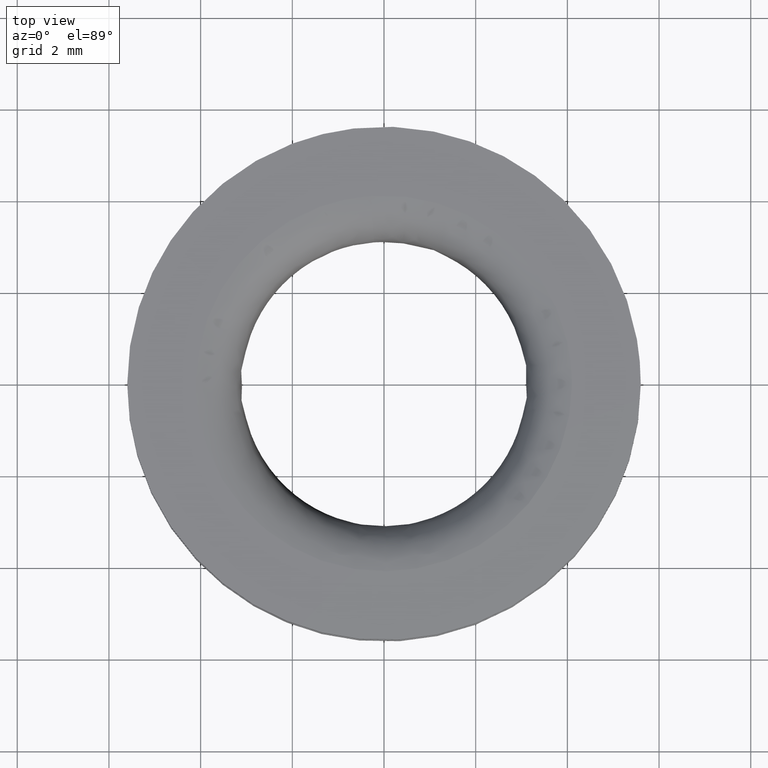
[diagram: clean part render]
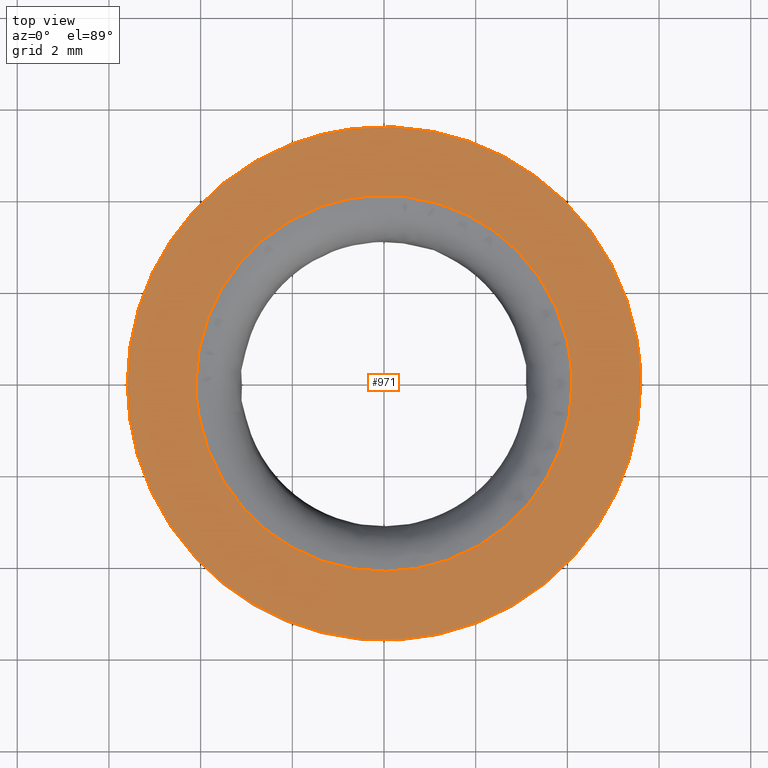
[diagram: same view with one face highlighted and labeled with its STEP entity id]
A machine part, top view. The second image highlights one B-rep face of the part: STEP entity #971.
In plain terms, the highlighted face is a freeform B-spline surface patch.
Its self-contained STEP definition (entity closure, byte-faithful):
#85=CARTESIAN_POINT('',(-0.660988216627040,5.560853763359345,2.0));
#86=VERTEX_POINT('',#85);
#92=CARTESIAN_POINT('',(5.600000000000000,0.0,2.0));
#93=VERTEX_POINT('',#92);
#94=CARTESIAN_POINT('',(-0.660988216627040,5.560853763359345,2.000000000000000));
#95=CARTESIAN_POINT('',(-0.331653302838156,5.600000000000000,2.000000000000000));
#96=CARTESIAN_POINT('',(0.0,5.600000000000000,2.0));
#97=CARTESIAN_POINT('',(5.599999999999999,5.599999999999999,2.0));
#98=CARTESIAN_POINT('',(5.600000000000000,0.0,2.0));
#106=(BOUNDED_CURVE()B_SPLINE_CURVE(2,(#94,#95,#96,#97,#98),.UNSPECIFIED.,.F.,.U.)B_SPLINE_CURVE_WITH_KNOTS((3,2,3),(0.229562579808786,0.250000000000000,0.500000000000000),.UNSPECIFIED.)CURVE()GEOMETRIC_REPRESENTATION_ITEM()RATIONAL_B_SPLINE_CURVE((0.956026962526900,0.976056072863809,1.0,0.707106781186547,1.0))REPRESENTATION_ITEM(''));
#107=EDGE_CURVE('',#86,#93,#106,.T.);
#109=CARTESIAN_POINT('',(0.341869845843835,-5.589554991991651,2.0));
#110=VERTEX_POINT('',#109);
#111=CARTESIAN_POINT('',(5.600000000000000,0.0,2.0));
#112=CARTESIAN_POINT('',(5.600000000000000,-5.267955840037390,2.0));
#113=CARTESIAN_POINT('',(0.341869845843835,-5.589554991991651,2.0));
#121=(BOUNDED_CURVE()B_SPLINE_CURVE(2,(#111,#112,#113),.UNSPECIFIED.,.F.,.U.)B_SPLINE_CURVE_WITH_KNOTS((3,3),(0.500000000000000,0.739333023226263),.UNSPECIFIED.)CURVE()GEOMETRIC_REPRESENTATION_ITEM()RATIONAL_B_SPLINE_CURVE((1.0,0.719603921835620,0.976072172374189))REPRESENTATION_ITEM(''));
#122=EDGE_CURVE('',#93,#110,#121,.T.);
#196=CARTESIAN_POINT('',(-5.600000000000000,0.0,2.0));
#197=VERTEX_POINT('',#196);
#198=CARTESIAN_POINT('',(0.341869845843835,-5.589554991991651,2.0));
#199=CARTESIAN_POINT('',(0.171094483926815,-5.600000000000000,2.000000000000000));
#200=CARTESIAN_POINT('',(0.0,-5.600000000000000,2.0));
#201=CARTESIAN_POINT('',(-5.599999999999999,-5.599999999999999,2.0));
#202=CARTESIAN_POINT('',(-5.600000000000000,0.0,2.0));
#210=(BOUNDED_CURVE()B_SPLINE_CURVE(2,(#198,#199,#200,#201,#202),.UNSPECIFIED.,.F.,.U.)B_SPLINE_CURVE_WITH_KNOTS((3,2,3),(0.739333023226263,0.750000000000000,1.0),.UNSPECIFIED.)CURVE()GEOMETRIC_REPRESENTATION_ITEM()RATIONAL_B_SPLINE_CURVE((0.976072172374189,0.987502859350927,1.0,0.707106781186547,1.0))REPRESENTATION_ITEM(''));
#211=EDGE_CURVE('',#110,#197,#210,.T.);
#213=CARTESIAN_POINT('',(-5.600000000000000,0.0,2.0));
#214=CARTESIAN_POINT('',(-5.599999999999999,4.973780495564358,2.000000000000000));
#215=CARTESIAN_POINT('',(-0.660988216627040,5.560853763359345,2.000000000000000));
#223=(BOUNDED_CURVE()B_SPLINE_CURVE(2,(#213,#214,#215),.UNSPECIFIED.,.F.,.U.)B_SPLINE_CURVE_WITH_KNOTS((3,3),(0.0,0.229562579808786),.UNSPECIFIED.)CURVE()GEOMETRIC_REPRESENTATION_ITEM()RATIONAL_B_SPLINE_CURVE((1.0,0.731050708322738,0.956026962526900))REPRESENTATION_ITEM(''));
#224=EDGE_CURVE('',#197,#86,#223,.T.);
#735=CARTESIAN_POINT('',(0.051520763526235,-4.099676281222010,2.0));
#736=VERTEX_POINT('',#735);
#752=CARTESIAN_POINT('',(4.100000000000001,0.0,2.0));
#753=VERTEX_POINT('',#752);
#754=CARTESIAN_POINT('',(4.100000000000001,0.0,2.0));
#755=CARTESIAN_POINT('',(4.100000000000001,-4.048798912610809,1.999999999999999));
#756=CARTESIAN_POINT('',(0.051520763526235,-4.099676281222010,2.0));
#764=(BOUNDED_CURVE()B_SPLINE_CURVE(2,(#754,#755,#756),.UNSPECIFIED.,.F.,.U.)B_SPLINE_CURVE_WITH_KNOTS((3,3),(0.500000000000000,0.747784295921329),.UNSPECIFIED.)CURVE()GEOMETRIC_REPRESENTATION_ITEM()RATIONAL_B_SPLINE_CURVE((1.0,0.709702639984707,0.994854295643094))REPRESENTATION_ITEM(''));
#765=EDGE_CURVE('',#753,#736,#764,.T.);
#767=CARTESIAN_POINT('',(-0.285905125439712,4.090017668716365,1.999999999997197));
#768=VERTEX_POINT('',#767);
#769=CARTESIAN_POINT('',(-0.285905125439712,4.090017668716365,1.999999999997197));
#770=CARTESIAN_POINT('',(-0.143126713607301,4.099998357012431,1.999999999997243));
#771=CARTESIAN_POINT('',(0.000000112812191,4.099998386164449,1.999999999997292));
#772=CARTESIAN_POINT('',(4.100000054437016,4.099999221250902,1.999999999998693));
#773=CARTESIAN_POINT('',(4.100000000000001,0.0,2.0));
#781=(BOUNDED_CURVE()B_SPLINE_CURVE(2,(#769,#770,#771,#772,#773),.UNSPECIFIED.,.F.,.U.)B_SPLINE_CURVE_WITH_KNOTS((3,2,3),(0.237833732338157,0.250000000000000,0.500000000000000),.UNSPECIFIED.)CURVE()GEOMETRIC_REPRESENTATION_ITEM()RATIONAL_B_SPLINE_CURVE((0.972879973264427,0.985746330814307,1.0,0.707106781186547,1.0))REPRESENTATION_ITEM(''));
#782=EDGE_CURVE('',#768,#753,#781,.T.);
#851=CARTESIAN_POINT('',(-4.100000000000001,0.0,2.0));
#852=VERTEX_POINT('',#851);
#853=CARTESIAN_POINT('',(-4.100000000000001,0.0,2.0));
#854=CARTESIAN_POINT('',(-4.099999941624826,3.823401259454132,1.999999999998598));
#855=CARTESIAN_POINT('',(-0.285905125439712,4.090017668716365,1.999999999997197));
#863=(BOUNDED_CURVE()B_SPLINE_CURVE(2,(#853,#854,#855),.UNSPECIFIED.,.F.,.U.)B_SPLINE_CURVE_WITH_KNOTS((3,3),(0.0,0.237833732338157),.UNSPECIFIED.)CURVE()GEOMETRIC_REPRESENTATION_ITEM()RATIONAL_B_SPLINE_CURVE((1.0,0.721360450372240,0.972879973264427))REPRESENTATION_ITEM(''));
#864=EDGE_CURVE('',#852,#768,#863,.T.);
#866=CARTESIAN_POINT('',(0.051520763526235,-4.099676281222010,2.000000000000000));
#867=CARTESIAN_POINT('',(0.025761398771408,-4.100000000000001,2.000000000000000));
#868=CARTESIAN_POINT('',(0.0,-4.100000000000001,2.0));
#869=CARTESIAN_POINT('',(-4.100000000000001,-4.100000000000001,2.0));
#870=CARTESIAN_POINT('',(-4.100000000000001,0.0,2.0));
#878=(BOUNDED_CURVE()B_SPLINE_CURVE(2,(#866,#867,#868,#869,#870),.UNSPECIFIED.,.F.,.U.)B_SPLINE_CURVE_WITH_KNOTS((3,2,3),(0.747784295921328,0.750000000000000,1.0),.UNSPECIFIED.)CURVE()GEOMETRIC_REPRESENTATION_ITEM()RATIONAL_B_SPLINE_CURVE((0.994854295643092,0.997404141201839,1.0,0.707106781186547,1.0))REPRESENTATION_ITEM(''));
#879=EDGE_CURVE('',#736,#852,#878,.T.);
#954=CARTESIAN_POINT('',(-6.159439873154640,-6.159303679269788,2.0));
#955=CARTESIAN_POINT('',(6.159440273697852,-6.159303679269788,2.0));
#956=CARTESIAN_POINT('',(-6.159439873154640,6.159338125986097,2.0));
#957=CARTESIAN_POINT('',(6.159440273697852,6.159338125986097,2.0));
#958=B_SPLINE_SURFACE_WITH_KNOTS('',1,1,((#954,#956),(#955,#957)),.UNSPECIFIED.,.F.,.F.,.U.,(2,2),(2,2),(0.0,12.318880146852489),(0.0,12.318641805255890),.UNSPECIFIED.);
#959=ORIENTED_EDGE('',*,*,#211,.F.);
#960=ORIENTED_EDGE('',*,*,#122,.F.);
#961=ORIENTED_EDGE('',*,*,#107,.F.);
#962=ORIENTED_EDGE('',*,*,#224,.F.);
#963=EDGE_LOOP('',(#959,#960,#961,#962));
#964=FACE_OUTER_BOUND('',#963,.T.);
#965=ORIENTED_EDGE('',*,*,#765,.T.);
#966=ORIENTED_EDGE('',*,*,#879,.T.);
#967=ORIENTED_EDGE('',*,*,#864,.T.);
#968=ORIENTED_EDGE('',*,*,#782,.T.);
#969=EDGE_LOOP('',(#965,#966,#967,#968));
#970=FACE_BOUND('',#969,.T.);
#971=ADVANCED_FACE('',(#964,#970),#958,.T.);